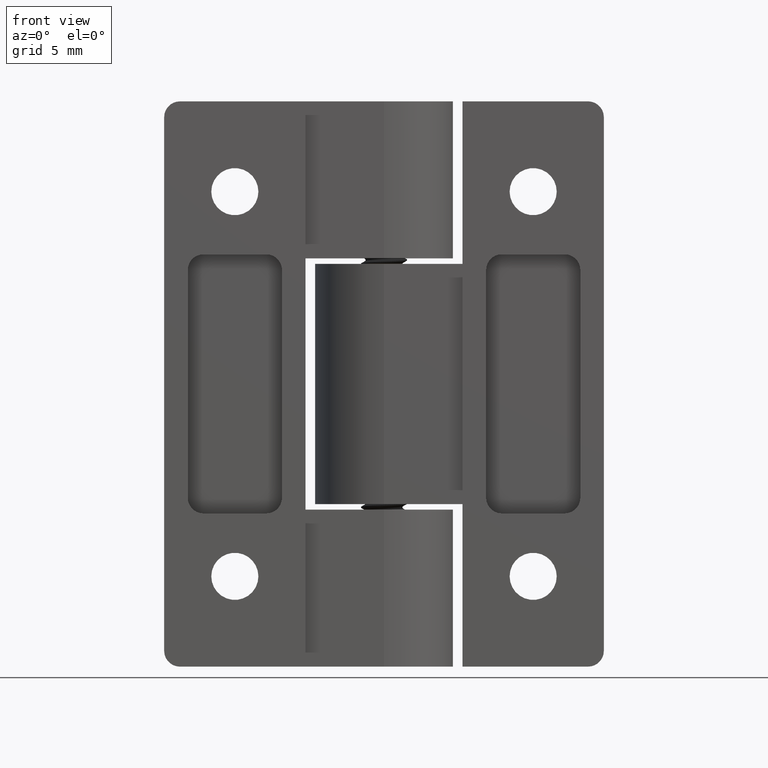
[diagram: clean part render]
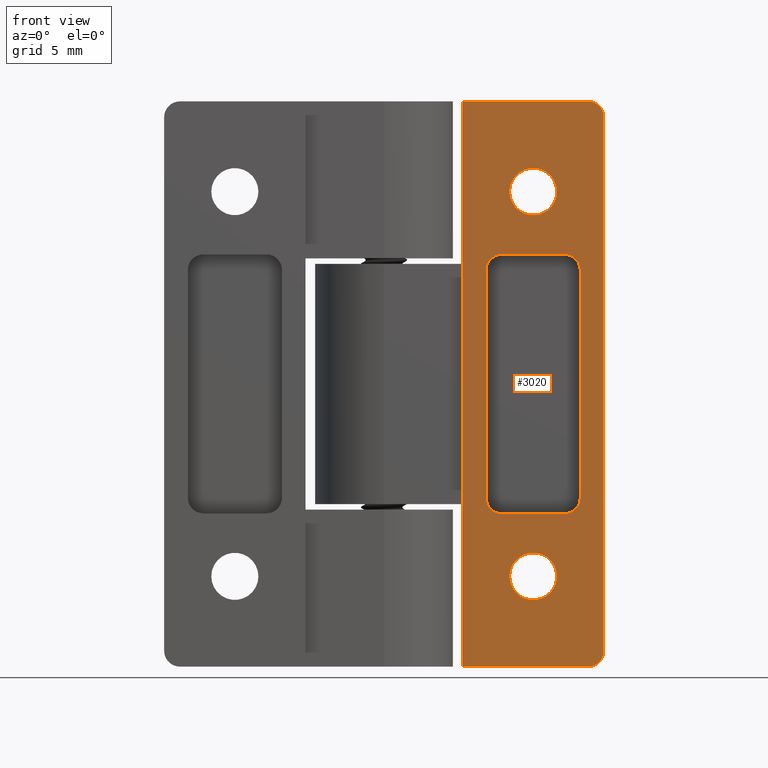
[diagram: same view with one face highlighted and labeled with its STEP entity id]
A machine part, front view. The second image highlights one B-rep face of the part: STEP entity #3020.
In plain terms, the highlighted planar face has unit normal (0, -1, 0).
Its self-contained STEP definition (entity closure, byte-faithful):
#339=FACE_BOUND('',#664,.T.);
#340=FACE_BOUND('',#665,.T.);
#341=FACE_BOUND('',#666,.T.);
#407=PLANE('',#3204);
#516=FACE_OUTER_BOUND('',#663,.T.);
#663=EDGE_LOOP('',(#2848,#2849,#2850,#2851,#2852,#2853));
#664=EDGE_LOOP('',(#2854,#2855,#2856,#2857,#2858,#2859,#2860,#2861));
#665=EDGE_LOOP('',(#2862));
#666=EDGE_LOOP('',(#2863));
#786=LINE('',#33443,#942);
#796=LINE('',#33472,#952);
#807=LINE('',#33511,#963);
#813=LINE('',#33526,#969);
#817=LINE('',#33538,#973);
#820=LINE('',#33547,#976);
#822=LINE('',#33571,#978);
#823=LINE('',#33573,#979);
#942=VECTOR('',#3585,8.);
#952=VECTOR('',#3609,8.);
#963=VECTOR('',#3646,14.5);
#969=VECTOR('',#3660,4.);
#973=VECTOR('',#3672,14.5);
#976=VECTOR('',#3683,4.0000000000001);
#978=VECTOR('',#3717,34.);
#979=VECTOR('',#3720,36.);
#1029=CIRCLE('',#3154,1.);
#1033=CIRCLE('',#3161,1.);
#1041=CIRCLE('',#3174,1.);
#1043=CIRCLE('',#3178,1.);
#1045=CIRCLE('',#3182,1.);
#1047=CIRCLE('',#3186,1.);
#1050=CIRCLE('',#3195,1.5);
#1053=CIRCLE('',#3201,1.5);
#1404=VERTEX_POINT('',#33433);
#1405=VERTEX_POINT('',#33435);
#1407=VERTEX_POINT('',#33441);
#1417=VERTEX_POINT('',#33465);
#1418=VERTEX_POINT('',#33466);
#1419=VERTEX_POINT('',#33471);
#1432=VERTEX_POINT('',#33504);
#1433=VERTEX_POINT('',#33506);
#1434=VERTEX_POINT('',#33510);
#1438=VERTEX_POINT('',#33519);
#1439=VERTEX_POINT('',#33521);
#1442=VERTEX_POINT('',#33531);
#1443=VERTEX_POINT('',#33533);
#1445=VERTEX_POINT('',#33542);
#1448=VERTEX_POINT('',#33558);
#1451=VERTEX_POINT('',#33567);
#1860=EDGE_CURVE('',#1404,#1405,#1029,.T.);
#1864=EDGE_CURVE('',#1407,#1404,#786,.T.);
#1875=EDGE_CURVE('',#1417,#1418,#1033,.T.);
#1878=EDGE_CURVE('',#1418,#1419,#796,.T.);
#1895=EDGE_CURVE('',#1432,#1433,#1041,.T.);
#1897=EDGE_CURVE('',#1434,#1433,#807,.T.);
#1902=EDGE_CURVE('',#1438,#1439,#1043,.T.);
#1905=EDGE_CURVE('',#1432,#1439,#813,.T.);
#1908=EDGE_CURVE('',#1442,#1443,#1045,.T.);
#1911=EDGE_CURVE('',#1438,#1443,#817,.T.);
#1913=EDGE_CURVE('',#1434,#1445,#1047,.T.);
#1916=EDGE_CURVE('',#1442,#1445,#820,.T.);
#1920=EDGE_CURVE('',#1448,#1448,#1050,.T.);
#1923=EDGE_CURVE('',#1451,#1451,#1053,.T.);
#1924=EDGE_CURVE('',#1417,#1405,#822,.T.);
#1925=EDGE_CURVE('',#1419,#1407,#823,.T.);
#2848=ORIENTED_EDGE('',*,*,#1860,.F.);
#2849=ORIENTED_EDGE('',*,*,#1864,.F.);
#2850=ORIENTED_EDGE('',*,*,#1925,.F.);
#2851=ORIENTED_EDGE('',*,*,#1878,.F.);
#2852=ORIENTED_EDGE('',*,*,#1875,.F.);
#2853=ORIENTED_EDGE('',*,*,#1924,.T.);
#2854=ORIENTED_EDGE('',*,*,#1897,.T.);
#2855=ORIENTED_EDGE('',*,*,#1895,.F.);
#2856=ORIENTED_EDGE('',*,*,#1905,.T.);
#2857=ORIENTED_EDGE('',*,*,#1902,.F.);
#2858=ORIENTED_EDGE('',*,*,#1911,.T.);
#2859=ORIENTED_EDGE('',*,*,#1908,.F.);
#2860=ORIENTED_EDGE('',*,*,#1916,.T.);
#2861=ORIENTED_EDGE('',*,*,#1913,.F.);
#2862=ORIENTED_EDGE('',*,*,#1920,.T.);
#2863=ORIENTED_EDGE('',*,*,#1923,.T.);
#3020=ADVANCED_FACE('',(#516,#339,#340,#341),#407,.T.);
#3154=AXIS2_PLACEMENT_3D('',#33436,#3578,#3579);
#3161=AXIS2_PLACEMENT_3D('',#33467,#3603,#3604);
#3174=AXIS2_PLACEMENT_3D('',#33507,#3641,#3642);
#3178=AXIS2_PLACEMENT_3D('',#33522,#3654,#3655);
#3182=AXIS2_PLACEMENT_3D('',#33534,#3666,#3667);
#3186=AXIS2_PLACEMENT_3D('',#33543,#3677,#3678);
#3195=AXIS2_PLACEMENT_3D('',#33559,#3699,#3700);
#3201=AXIS2_PLACEMENT_3D('',#33568,#3711,#3712);
#3204=AXIS2_PLACEMENT_3D('',#33572,#3718,#3719);
#3578=DIRECTION('center_axis',(1.71193772834421E-33,0.,1.));
#3579=DIRECTION('ref_axis',(-0.707106781186546,0.707106781186549,1.21052277668128E-33));
#3585=DIRECTION('',(-1.,0.,1.71193772834421E-33));
#3603=DIRECTION('center_axis',(1.71193772834421E-33,0.,1.));
#3604=DIRECTION('ref_axis',(-0.707106781186546,-0.707106781186549,1.21052277668128E-33));
#3609=DIRECTION('',(1.,0.,-1.71193772834421E-33));
#3641=DIRECTION('center_axis',(-1.71193772834421E-33,0.,-1.));
#3642=DIRECTION('ref_axis',(0.707106781186547,0.707106781186548,-1.21052277668128E-33));
#3646=DIRECTION('',(0.,1.,0.));
#3654=DIRECTION('center_axis',(-1.71193772834421E-33,0.,-1.));
#3655=DIRECTION('ref_axis',(-0.707106781186547,0.707106781186548,1.21052277668128E-33));
#3660=DIRECTION('',(-1.,3.70074341541719E-16,1.71193772834421E-33));
#3666=DIRECTION('center_axis',(-1.71193772834421E-33,0.,-1.));
#3667=DIRECTION('ref_axis',(-0.707106781186547,-0.707106781186548,1.21052277668128E-33));
#3672=DIRECTION('',(0.,-1.,0.));
#3677=DIRECTION('center_axis',(-1.71193772834421E-33,0.,-1.));
#3678=DIRECTION('ref_axis',(0.707106781186547,-0.707106781186548,-1.21052277668128E-33));
#3683=DIRECTION('',(1.,0.,-1.71193772834421E-33));
#3699=DIRECTION('center_axis',(1.71193772834421E-33,0.,1.));
#3700=DIRECTION('ref_axis',(1.,0.,-1.71193772834421E-33));
#3711=DIRECTION('center_axis',(1.71193772834421E-33,0.,1.));
#3712=DIRECTION('ref_axis',(1.,0.,-1.71193772834421E-33));
#3717=DIRECTION('',(0.,1.,0.));
#3718=DIRECTION('center_axis',(-1.71193772834421E-33,0.,-1.));
#3719=DIRECTION('ref_axis',(-1.,0.,1.71193772834421E-33));
#3720=DIRECTION('',(0.,1.,0.));
#33433=CARTESIAN_POINT('',(31.9262510638286,18.,-1.71193772834421E-33));
#33435=CARTESIAN_POINT('',(30.9262510638286,17.,0.));
#33436=CARTESIAN_POINT('Origin',(31.9262510638286,17.,5.55111512312578E-16));
#33441=CARTESIAN_POINT('',(39.9262510638286,18.,0.));
#33443=CARTESIAN_POINT('',(30.9262510638286,18.,0.));
#33465=CARTESIAN_POINT('',(30.9262510638286,-17.,0.));
#33466=CARTESIAN_POINT('',(31.9262510638286,-18.,-1.71193772834421E-33));
#33467=CARTESIAN_POINT('Origin',(31.9262510638286,-17.,5.55111512312578E-16));
#33471=CARTESIAN_POINT('',(39.9262510638286,-18.,0.));
#33472=CARTESIAN_POINT('',(30.9262510638286,-18.,0.));
#33504=CARTESIAN_POINT('',(37.4262510638287,8.25,-1.11275952342374E-32));
#33506=CARTESIAN_POINT('',(38.4262510638287,7.25,-1.28395329625816E-32));
#33507=CARTESIAN_POINT('Origin',(37.4262510638287,7.25,-1.54074395550979E-32));
#33510=CARTESIAN_POINT('',(38.4262510638287,-7.25,-1.28395329625816E-32));
#33511=CARTESIAN_POINT('',(38.4262510638287,-4.125,-1.28395329625816E-32));
#33519=CARTESIAN_POINT('',(32.4262510638286,7.25,-2.56790659251631E-33));
#33521=CARTESIAN_POINT('',(33.4262510638287,8.25,-4.27984432086053E-33));
#33522=CARTESIAN_POINT('Origin',(33.4262510638286,7.25,-1.54074395550979E-32));
#33526=CARTESIAN_POINT('',(39.1762510638287,8.25,-1.41234862588397E-32));
#33531=CARTESIAN_POINT('',(33.4262510638286,-8.25,-4.27984432086052E-33));
#33533=CARTESIAN_POINT('',(32.4262510638286,-7.25,-2.56790659251631E-33));
#33534=CARTESIAN_POINT('Origin',(33.4262510638286,-7.25,-1.54074395550979E-32));
#33538=CARTESIAN_POINT('',(32.4262510638286,4.125,-2.56790659251631E-33));
#33542=CARTESIAN_POINT('',(37.4262510638287,-8.25,-1.11275952342374E-32));
#33543=CARTESIAN_POINT('Origin',(37.4262510638287,-7.25,-1.54074395550979E-32));
#33547=CARTESIAN_POINT('',(36.1762510638286,-8.25,-8.9876730738071E-33));
#33558=CARTESIAN_POINT('',(33.9262510638287,12.25,-3.64291929955129E-16));
#33559=CARTESIAN_POINT('Origin',(35.4262510638287,12.25,-2.77555756156289E-16));
#33567=CARTESIAN_POINT('',(33.9262510638287,-12.25,-3.64291929955129E-16));
#33568=CARTESIAN_POINT('Origin',(35.4262510638287,-12.25,-2.77555756156289E-16));
#33571=CARTESIAN_POINT('',(30.9262510638286,0.,0.));
#33572=CARTESIAN_POINT('Origin',(39.9262510638286,0.,-1.54074395550979E-32));
#33573=CARTESIAN_POINT('',(39.9262510638286,0.,-1.54074395550979E-32));